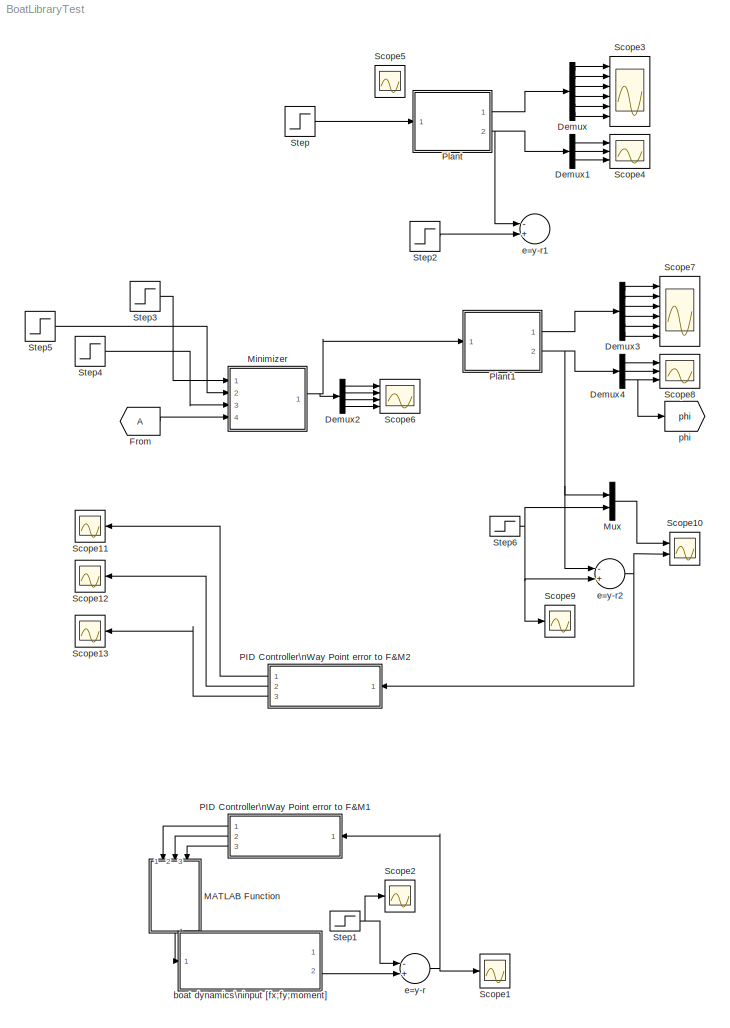
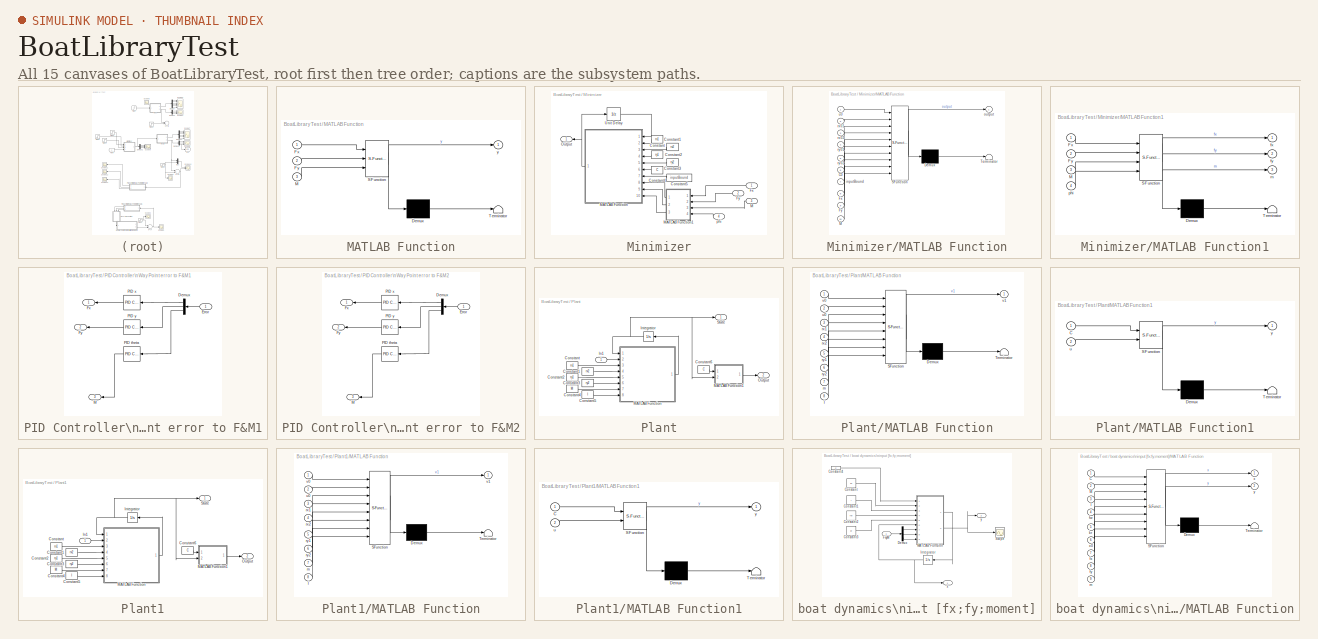
[diagram: thumbnail index - all 15 canvases of the model, root first then tree order]
MODEL BoatLibraryTest
KIND model
BLOCK [Demux] Demux
  DisplayOption = bar
  Outputs = 6
  Ports = [1, 6]
  SID = 68
BLOCK [Demux] Demux1
  DisplayOption = bar
  Outputs = 3
  Ports = [1, 3]
  SID = 69
BLOCK [Demux] Demux2
  DisplayOption = bar
  Ports = [1, 4]
  SID = 103
BLOCK [Demux] Demux3
  DisplayOption = bar
  Outputs = 6
  Ports = [1, 6]
  SID = 105
BLOCK [Demux] Demux4
  DisplayOption = bar
  Outputs = 3
  Ports = [1, 3]
  SID = 106
BLOCK [From] From
  SID = 171
BLOCK [SubSystem] MATLAB Function
  ErrorFcn = Stateflow.Translate.translate
  FunctionWithSeparateData = off
  MaskHideContents = off
  MinAlgLoopOccurrences = off
  Opaque = off
  PermitHierarchicalResolution = ExplicitOnly
  Ports = [3, 1]
  PropExecContextOutsideSubsystem = off
  RTWSystemCode = Auto
  RequestExecContextInheritance = off
  SFBlockType = MATLAB Function
  SID = 145
  TreatAsAtomicUnit = on
BLOCK [Demux] MATLAB Function/ Demux 
  Outputs = 1
  Ports = [1, 1]
  SID = 145::19
BLOCK [S-Function] MATLAB Function/ SFunction 
  EnableBusSupport = on
  FunctionName = sf_sfun
  PortCounts = [3 2]
  Ports = [3, 2]
  SID = 145::18
  Tag = Stateflow S-Function BoatLibraryTest 7
BLOCK [Terminator] MATLAB Function/ Terminator 
  SID = 145::20
BLOCK [Inport] MATLAB Function/Fx
  IconDisplay = Port number
  SID = 145::1
BLOCK [Inport] MATLAB Function/Fy
  IconDisplay = Port number
  Port = 2
  SID = 145::21
BLOCK [Inport] MATLAB Function/M
  IconDisplay = Port number
  Port = 3
  SID = 145::22
BLOCK [Outport] MATLAB Function/y
  IconDisplay = Port number
  SID = 145::5
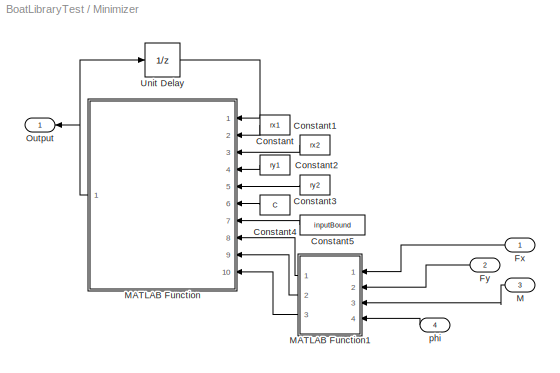
BLOCK [SubSystem] Minimizer
  FunctionWithSeparateData = off
  MaskHideContents = off
  MinAlgLoopOccurrences = off
  Opaque = off
  Ports = [4, 1]
  PropExecContextOutsideSubsystem = off
  RTWSystemCode = Auto
  RequestExecContextInheritance = off
  SID = 79
BLOCK [Constant] Minimizer/Constant
  SID = 81
  Value = rx1
BLOCK [Constant] Minimizer/Constant1
  SID = 82
  Value = rx2
BLOCK [Constant] Minimizer/Constant2
  SID = 83
  Value = ry1
BLOCK [Constant] Minimizer/Constant3
  SID = 84
  Value = ry2
BLOCK [Constant] Minimizer/Constant4
  SID = 85
  Value = C
BLOCK [Constant] Minimizer/Constant5
  SID = 128
  Value = inputBound
BLOCK [Inport] Minimizer/Fx
  IconDisplay = Port number
  SID = 80
BLOCK [Inport] Minimizer/Fy
  IconDisplay = Port number
  Port = 2
  SID = 148
BLOCK [Inport] Minimizer/M
  IconDisplay = Port number
  Port = 3
  SID = 149
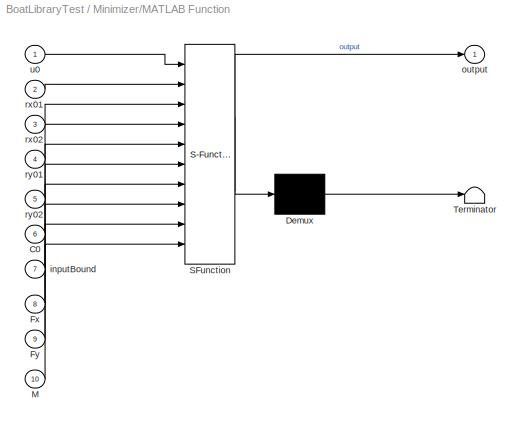
BLOCK [SubSystem] Minimizer/MATLAB Function
  ErrorFcn = Stateflow.Translate.translate
  FunctionWithSeparateData = off
  MaskHideContents = off
  MinAlgLoopOccurrences = off
  Opaque = off
  PermitHierarchicalResolution = ExplicitOnly
  Ports = [10, 1]
  PropExecContextOutsideSubsystem = off
  RTWSystemCode = Auto
  RequestExecContextInheritance = off
  SFBlockType = MATLAB Function
  SID = 86
  TreatAsAtomicUnit = on
BLOCK [Demux] Minimizer/MATLAB Function/ Demux 
  Outputs = 1
  Ports = [1, 1]
  SID = 86::125
BLOCK [S-Function] Minimizer/MATLAB Function/ SFunction 
  EnableBusSupport = on
  FunctionName = sf_sfun
  PortCounts = [10 2]
  Ports = [10, 2]
  SID = 86::124
  Tag = Stateflow S-Function BoatLibraryTest 4
BLOCK [Terminator] Minimizer/MATLAB Function/ Terminator 
  SID = 86::126
BLOCK [Inport] Minimizer/MATLAB Function/C0
  IconDisplay = Port number
  Port = 6
  SID = 86::27
BLOCK [Inport] Minimizer/MATLAB Function/Fx
  IconDisplay = Port number
  Port = 8
  SID = 86::28
BLOCK [Inport] Minimizer/MATLAB Function/Fy
  IconDisplay = Port number
  Port = 9
  SID = 86::127
BLOCK [Inport] Minimizer/MATLAB Function/M
  IconDisplay = Port number
  Port = 10
  SID = 86::128
BLOCK [Inport] Minimizer/MATLAB Function/inputBound
  IconDisplay = Port number
  Port = 7
  SID = 86::123
BLOCK [Outport] Minimizer/MATLAB Function/output
  IconDisplay = Port number
  SID = 86::5
BLOCK [Inport] Minimizer/MATLAB Function/rx01
  IconDisplay = Port number
  Port = 2
  SID = 86::23
BLOCK [Inport] Minimizer/MATLAB Function/rx02
  IconDisplay = Port number
  Port = 3
  SID = 86::24
BLOCK [Inport] Minimizer/MATLAB Function/ry01
  IconDisplay = Port number
  Port = 4
  SID = 86::25
BLOCK [Inport] Minimizer/MATLAB Function/ry02
  IconDisplay = Port number
  Port = 5
  SID = 86::26
BLOCK [Inport] Minimizer/MATLAB Function/u0
  IconDisplay = Port number
  SID = 86::1
BLOCK [SubSystem] Minimizer/MATLAB Function1
  ErrorFcn = Stateflow.Translate.translate
  FunctionWithSeparateData = off
  MaskHideContents = off
  MinAlgLoopOccurrences = off
  Opaque = off
  PermitHierarchicalResolution = ExplicitOnly
  Ports = [4, 3]
  PropExecContextOutsideSubsystem = off
  RTWSystemCode = Auto
  RequestExecContextInheritance = off
  SFBlockType = MATLAB Function
  SID = 168
  TreatAsAtomicUnit = on
BLOCK [Demux] Minimizer/MATLAB Function1/ Demux 
  Outputs = 1
  Ports = [1, 1]
  SID = 168::19
BLOCK [S-Function] Minimizer/MATLAB Function1/ SFunction 
  EnableBusSupport = on
  FunctionName = sf_sfun
  PortCounts = [4 4]
  Ports = [4, 4]
  SID = 168::18
  Tag = Stateflow S-Function BoatLibraryTest 8
BLOCK [Terminator] Minimizer/MATLAB Function1/ Terminator 
  SID = 168::20
BLOCK [Inport] Minimizer/MATLAB Function1/Fx
  IconDisplay = Port number
  SID = 168::1
BLOCK [Inport] Minimizer/MATLAB Function1/Fy
  IconDisplay = Port number
  Port = 2
  SID = 168::21
BLOCK [Inport] Minimizer/MATLAB Function1/M
  IconDisplay = Port number
  Port = 3
  SID = 168::22
BLOCK [Outport] Minimizer/MATLAB Function1/fx
  IconDisplay = Port number
  SID = 168::5
BLOCK [Outport] Minimizer/MATLAB Function1/fy
  IconDisplay = Port number
  Port = 2
  SID = 168::23
BLOCK [Outport] Minimizer/MATLAB Function1/m
  IconDisplay = Port number
  Port = 3
  SID = 168::24
BLOCK [Inport] Minimizer/MATLAB Function1/phi
  IconDisplay = Port number
  Port = 4
  SID = 168::25
BLOCK [Outport] Minimizer/Output
  IconDisplay = Port number
  SID = 88
BLOCK [UnitDelay] Minimizer/Unit Delay
  InitialCondition = [0;0;0;0]
  InputProcessing = Elements as channels (sample based)
  SID = 87
  SampleTime = -1
BLOCK [Inport] Minimizer/phi
  IconDisplay = Port number
  Port = 4
  SID = 169
BLOCK [Mux] Mux
  DisplayOption = bar
  Inputs = 2
  Ports = [2, 1]
  SID = 173
BLOCK [SubSystem] PID Controller\nWay Point error to F&M1
  FunctionWithSeparateData = off
  MaskHideContents = off
  MinAlgLoopOccurrences = off
  Opaque = off
  Ports = [1, 3]
  PropExecContextOutsideSubsystem = off
  RTWSystemCode = Auto
  RequestExecContextInheritance = off
  SID = 16
BLOCK [Demux] PID Controller\nWay Point error to F&M1/Demux
  DisplayOption = bar
  Outputs = 3
  Ports = [1, 3]
  SID = 18
BLOCK [Inport] PID Controller\nWay Point error to F&M1/Error
  IconDisplay = Port number
  SID = 17
BLOCK [Outport] PID Controller\nWay Point error to F&M1/Fx
  IconDisplay = Port number
  SID = 23
BLOCK [Outport] PID Controller\nWay Point error to F&M1/Fy
  IconDisplay = Port number
  Port = 2
  SID = 146
BLOCK [Outport] PID Controller\nWay Point error to F&M1/M
  IconDisplay = Port number
  Port = 3
  SID = 147
BLOCK [Reference] PID Controller\nWay Point error to F&M1/PID theta  REF=simulink/Continuous/PID Controller
  AntiWindupMode = none
  Controller = PID
  D = 5.47077070641916
  DOutDataTypeStr = Inherit: Inherit via internal rule
  DOutMax = []
  DOutMin = []
  DParamDataTypeStr = Inherit: Inherit via internal rule
  DParamMax = []
  DParamMin = []
  ExternalReset = none
  FilterContinuousStateAttributes = ''
  FilterMethod = Forward Euler
  FilterOutDataTypeStr = Inherit: Inherit via internal rule
  FilterOutMax = []
  FilterOutMin = []
  FilterRTWStateStorageClass = Auto
  FilterStateMustResolveToSignalObject = off
  Form = Parallel
  I = -178.448916818041
  IOutDataTypeStr = Inherit: Inherit via internal rule
  IOutMax = []
  IOutMin = []
  IParamDataTypeStr = Inherit: Inherit via internal rule
  IParamMax = []
  IParamMin = []
  IgnoreLimit = off
  InitialConditionForFilter = 0
  InitialConditionForIntegrator = 0
  InitialConditionSource = internal
  IntegratorContinuousStateAttributes = ''
  IntegratorMethod = Forward Euler
  IntegratorOutDataTypeStr = Inherit: Inherit via internal rule
  IntegratorOutMax = []
  IntegratorOutMin = []
  IntegratorRTWStateStorageClass = Auto
  IntegratorStateMustResolveToSignalObject = off
  Kb = 1
  KbOutDataTypeStr = Inherit: Inherit via internal rule
  KbOutMax = []
  KbOutMin = []
  KbParamDataTypeStr = Inherit: Inherit via internal rule
  KbParamMax = []
  KbParamMin = []
  Kt = 1
  KtOutDataTypeStr = Inherit: Inherit via internal rule
  KtOutMax = []
  KtOutMin = []
  KtParamDataTypeStr = Inherit: Inherit via internal rule
  KtParamMax = []
  KtParamMin = []
  LimitOutput = off
  LinearizeAsGain = off
  LockScale = off
  LowerSaturationLimit = -inf
  N = 9.64052643054454
  NOutDataTypeStr = Inherit: Inherit via internal rule
  NOutMax = []
  NOutMin = []
  NParamDataTypeStr = Inherit: Inherit via internal rule
  NParamMax = []
  NParamMin = []
  P = -52.7411095906827
  POutDataTypeStr = Inherit: Inherit via internal rule
  POutMax = []
  POutMin = []
  PParamDataTypeStr = Inherit: Inherit via internal rule
  PParamMax = []
  PParamMin = []
  Ports = [1, 1]
  RndMeth = Floor
  SID = 20
  SampleTime = 1
  SaturateOnIntegerOverflow = off
  SaturationOutDataTypeStr = Inherit: Same as input
  SaturationOutMax = []
  SaturationOutMin = []
  SourceBlock = simulink/Continuous/PID Controller
  SourceType = PID 1dof
  SumAccumDataTypeStr = Inherit: Inherit via internal rule
  SumDAccumDataTypeStr = Inherit: Inherit via internal rule
  SumDOutDataTypeStr = Inherit: Inherit via internal rule
  SumDOutMax = []
  SumDOutMin = []
  SumI1AccumDataTypeStr = Inherit: Inherit via internal rule
  SumI1OutDataTypeStr = Inherit: Inherit via internal rule
  SumI1OutMax = []
  SumI1OutMin = []
  SumI2AccumDataTypeStr = Inherit: Inherit via internal rule
  SumI2OutDataTypeStr = Inherit: Inherit via internal rule
  SumI2OutMax = []
  SumI2OutMin = []
  SumI3AccumDataTypeStr = Inherit: Inherit via internal rule
  SumI3OutDataTypeStr = Inherit: Inherit via internal rule
  SumI3OutMax = []
  SumI3OutMin = []
  SumOutDataTypeStr = Inherit: Inherit via internal rule
  SumOutMax = []
  SumOutMin = []
  TimeDomain = Continuous-time
  TrackingMode = off
  UpperSaturationLimit = inf
  ZeroCross = on
BLOCK [Reference] PID Controller\nWay Point error to F&M1/PID x  REF=simulink/Continuous/PID Controller
  AntiWindupMode = none
  Controller = PID
  D = 2.73538535320958
  DOutDataTypeStr = Inherit: Inherit via internal rule
  DOutMax = []
  DOutMin = []
  DParamDataTypeStr = Inherit: Inherit via internal rule
  DParamMax = []
  DParamMin = []
  ExternalReset = none
  FilterContinuousStateAttributes = ''
  FilterMethod = Forward Euler
  FilterOutDataTypeStr = Inherit: Inherit via internal rule
  FilterOutMax = []
  FilterOutMin = []
  FilterRTWStateStorageClass = Auto
  FilterStateMustResolveToSignalObject = off
  Form = Parallel
  I = -356.897833636081
  IOutDataTypeStr = Inherit: Inherit via internal rule
  IOutMax = []
  IOutMin = []
  IParamDataTypeStr = Inherit: Inherit via internal rule
  IParamMax = []
  IParamMin = []
  IgnoreLimit = off
  InitialConditionForFilter = 0
  InitialConditionForIntegrator = 0
  InitialConditionSource = internal
  IntegratorContinuousStateAttributes = ''
  IntegratorMethod = Forward Euler
  IntegratorOutDataTypeStr = Inherit: Inherit via internal rule
  IntegratorOutMax = []
  IntegratorOutMin = []
  IntegratorRTWStateStorageClass = Auto
  IntegratorStateMustResolveToSignalObject = off
  Kb = 1
  KbOutDataTypeStr = Inherit: Inherit via internal rule
  KbOutMax = []
  KbOutMin = []
  KbParamDataTypeStr = Inherit: Inherit via internal rule
  KbParamMax = []
  KbParamMin = []
  Kt = 1
  KtOutDataTypeStr = Inherit: Inherit via internal rule
  KtOutMax = []
  KtOutMin = []
  KtParamDataTypeStr = Inherit: Inherit via internal rule
  KtParamMax = []
  KtParamMin = []
  LimitOutput = off
  LinearizeAsGain = off
  LockScale = off
  LowerSaturationLimit = -inf
  N = 19.2810528610891
  NOutDataTypeStr = Inherit: Inherit via internal rule
  NOutMax = []
  NOutMin = []
  NParamDataTypeStr = Inherit: Inherit via internal rule
  NParamMax = []
  NParamMin = []
  P = -52.7411095906827
  POutDataTypeStr = Inherit: Inherit via internal rule
  POutMax = []
  POutMin = []
  PParamDataTypeStr = Inherit: Inherit via internal rule
  PParamMax = []
  PParamMin = []
  Ports = [1, 1]
  RndMeth = Floor
  SID = 21
  SampleTime = 1
  SaturateOnIntegerOverflow = off
  SaturationOutDataTypeStr = Inherit: Same as input
  SaturationOutMax = []
  SaturationOutMin = []
  SourceBlock = simulink/Continuous/PID Controller
  SourceType = PID 1dof
  SumAccumDataTypeStr = Inherit: Inherit via internal rule
  SumDAccumDataTypeStr = Inherit: Inherit via internal rule
  SumDOutDataTypeStr = Inherit: Inherit via internal rule
  SumDOutMax = []
  SumDOutMin = []
  SumI1AccumDataTypeStr = Inherit: Inherit via internal rule
  SumI1OutDataTypeStr = Inherit: Inherit via internal rule
  SumI1OutMax = []
  SumI1OutMin = []
  SumI2AccumDataTypeStr = Inherit: Inherit via internal rule
  SumI2OutDataTypeStr = Inherit: Inherit via internal rule
  SumI2OutMax = []
  SumI2OutMin = []
  SumI3AccumDataTypeStr = Inherit: Inherit via internal rule
  SumI3OutDataTypeStr = Inherit: Inherit via internal rule
  SumI3OutMax = []
  SumI3OutMin = []
  SumOutDataTypeStr = Inherit: Inherit via internal rule
  SumOutMax = []
  SumOutMin = []
  TimeDomain = Continuous-time
  TrackingMode = off
  UpperSaturationLimit = inf
  ZeroCross = on
BLOCK [Reference] PID Controller\nWay Point error to F&M1/PID y  REF=simulink/Continuous/PID Controller
  AntiWindupMode = none
  Controller = PID
  D = 2.73538535320958
  DOutDataTypeStr = Inherit: Inherit via internal rule
  DOutMax = []
  DOutMin = []
  DParamDataTypeStr = Inherit: Inherit via internal rule
  DParamMax = []
  DParamMin = []
  ExternalReset = none
  FilterContinuousStateAttributes = ''
  FilterMethod = Forward Euler
  FilterOutDataTypeStr = Inherit: Inherit via internal rule
  FilterOutMax = []
  FilterOutMin = []
  FilterRTWStateStorageClass = Auto
  FilterStateMustResolveToSignalObject = off
  Form = Parallel
  I = -356.897833636081
  IOutDataTypeStr = Inherit: Inherit via internal rule
  IOutMax = []
  IOutMin = []
  IParamDataTypeStr = Inherit: Inherit via internal rule
  IParamMax = []
  IParamMin = []
  IgnoreLimit = off
  InitialConditionForFilter = 0
  InitialConditionForIntegrator = 0
  InitialConditionSource = internal
  IntegratorContinuousStateAttributes = ''
  IntegratorMethod = Forward Euler
  IntegratorOutDataTypeStr = Inherit: Inherit via internal rule
  IntegratorOutMax = []
  IntegratorOutMin = []
  IntegratorRTWStateStorageClass = Auto
  IntegratorStateMustResolveToSignalObject = off
  Kb = 1
  KbOutDataTypeStr = Inherit: Inherit via internal rule
  KbOutMax = []
  KbOutMin = []
  KbParamDataTypeStr = Inherit: Inherit via internal rule
  KbParamMax = []
  KbParamMin = []
  Kt = 1
  KtOutDataTypeStr = Inherit: Inherit via internal rule
  KtOutMax = []
  KtOutMin = []
  KtParamDataTypeStr = Inherit: Inherit via internal rule
  KtParamMax = []
  KtParamMin = []
  LimitOutput = off
  LinearizeAsGain = off
  LockScale = off
  LowerSaturationLimit = -inf
  N = 19.2810528610891
  NOutDataTypeStr = Inherit: Inherit via internal rule
  NOutMax = []
  NOutMin = []
  NParamDataTypeStr = Inherit: Inherit via internal rule
  NParamMax = []
  NParamMin = []
  P = -52.7411095906827
  POutDataTypeStr = Inherit: Inherit via internal rule
  POutMax = []
  POutMin = []
  PParamDataTypeStr = Inherit: Inherit via internal rule
  PParamMax = []
  PParamMin = []
  Ports = [1, 1]
  RndMeth = Floor
  SID = 22
  SampleTime = 1
  SaturateOnIntegerOverflow = off
  SaturationOutDataTypeStr = Inherit: Same as input
  SaturationOutMax = []
  SaturationOutMin = []
  SourceBlock = simulink/Continuous/PID Controller
  SourceType = PID 1dof
  SumAccumDataTypeStr = Inherit: Inherit via internal rule
  SumDAccumDataTypeStr = Inherit: Inherit via internal rule
  SumDOutDataTypeStr = Inherit: Inherit via internal rule
  SumDOutMax = []
  SumDOutMin = []
  SumI1AccumDataTypeStr = Inherit: Inherit via internal rule
  SumI1OutDataTypeStr = Inherit: Inherit via internal rule
  SumI1OutMax = []
  SumI1OutMin = []
  SumI2AccumDataTypeStr = Inherit: Inherit via internal rule
  SumI2OutDataTypeStr = Inherit: Inherit via internal rule
  SumI2OutMax = []
  SumI2OutMin = []
  SumI3AccumDataTypeStr = Inherit: Inherit via internal rule
  SumI3OutDataTypeStr = Inherit: Inherit via internal rule
  SumI3OutMax = []
  SumI3OutMin = []
  SumOutDataTypeStr = Inherit: Inherit via internal rule
  SumOutMax = []
  SumOutMin = []
  TimeDomain = Continuous-time
  TrackingMode = off
  UpperSaturationLimit = inf
  ZeroCross = on
BLOCK [SubSystem] PID Controller\nWay Point error to F&M2
  FunctionWithSeparateData = off
  MaskHideContents = off
  MinAlgLoopOccurrences = off
  Opaque = off
  Ports = [1, 3]
  PropExecContextOutsideSubsystem = off
  RTWSystemCode = Auto
  RequestExecContextInheritance = off
  SID = 155
BLOCK [Demux] PID Controller\nWay Point error to F&M2/Demux
  DisplayOption = bar
  Outputs = 3
  Ports = [1, 3]
  SID = 157
BLOCK [Inport] PID Controller\nWay Point error to F&M2/Error
  IconDisplay = Port number
  SID = 156
BLOCK [Outport] PID Controller\nWay Point error to F&M2/Fx
  IconDisplay = Port number
  SID = 161
BLOCK [Outport] PID Controller\nWay Point error to F&M2/Fy
  IconDisplay = Port number
  Port = 2
  SID = 162
BLOCK [Outport] PID Controller\nWay Point error to F&M2/M
  IconDisplay = Port number
  Port = 3
  SID = 163
BLOCK [Reference] PID Controller\nWay Point error to F&M2/PID theta  REF=simulink/Continuous/PID Controller
  AntiWindupMode = none
  Controller = PID
  D = -5
  DOutDataTypeStr = Inherit: Inherit via internal rule
  DOutMax = []
  DOutMin = []
  DParamDataTypeStr = Inherit: Inherit via internal rule
  DParamMax = []
  DParamMin = []
  ExternalReset = none
  FilterContinuousStateAttributes = ''
  FilterMethod = Forward Euler
  FilterOutDataTypeStr = Inherit: Inherit via internal rule
  FilterOutMax = []
  FilterOutMin = []
  FilterRTWStateStorageClass = Auto
  FilterStateMustResolveToSignalObject = off
  Form = Parallel
  I = 178.448916818041
  IOutDataTypeStr = Inherit: Inherit via internal rule
  IOutMax = []
  IOutMin = []
  IParamDataTypeStr = Inherit: Inherit via internal rule
  IParamMax = []
  IParamMin = []
  IgnoreLimit = off
  InitialConditionForFilter = 0
  InitialConditionForIntegrator = 0
  InitialConditionSource = internal
  IntegratorContinuousStateAttributes = ''
  IntegratorMethod = Forward Euler
  IntegratorOutDataTypeStr = Inherit: Inherit via internal rule
  IntegratorOutMax = []
  IntegratorOutMin = []
  IntegratorRTWStateStorageClass = Auto
  IntegratorStateMustResolveToSignalObject = off
  Kb = 1
  KbOutDataTypeStr = Inherit: Inherit via internal rule
  KbOutMax = []
  KbOutMin = []
  KbParamDataTypeStr = Inherit: Inherit via internal rule
  KbParamMax = []
  KbParamMin = []
  Kt = 1
  KtOutDataTypeStr = Inherit: Inherit via internal rule
  KtOutMax = []
  KtOutMin = []
  KtParamDataTypeStr = Inherit: Inherit via internal rule
  KtParamMax = []
  KtParamMin = []
  LimitOutput = off
  LinearizeAsGain = off
  LockScale = off
  LowerSaturationLimit = -inf
  N = 9.64052643054454
  NOutDataTypeStr = Inherit: Inherit via internal rule
  NOutMax = []
  NOutMin = []
  NParamDataTypeStr = Inherit: Inherit via internal rule
  NParamMax = []
  NParamMin = []
  P = 52.7411095906827
  POutDataTypeStr = Inherit: Inherit via internal rule
  POutMax = []
  POutMin = []
  PParamDataTypeStr = Inherit: Inherit via internal rule
  PParamMax = []
  PParamMin = []
  Ports = [1, 1]
  RndMeth = Floor
  SID = 158
  SampleTime = 1
  SaturateOnIntegerOverflow = off
  SaturationOutDataTypeStr = Inherit: Same as input
  SaturationOutMax = []
  SaturationOutMin = []
  SourceBlock = simulink/Continuous/PID Controller
  SourceType = PID 1dof
  SumAccumDataTypeStr = Inherit: Inherit via internal rule
  SumDAccumDataTypeStr = Inherit: Inherit via internal rule
  SumDOutDataTypeStr = Inherit: Inherit via internal rule
  SumDOutMax = []
  SumDOutMin = []
  SumI1AccumDataTypeStr = Inherit: Inherit via internal rule
  SumI1OutDataTypeStr = Inherit: Inherit via internal rule
  SumI1OutMax = []
  SumI1OutMin = []
  SumI2AccumDataTypeStr = Inherit: Inherit via internal rule
  SumI2OutDataTypeStr = Inherit: Inherit via internal rule
  SumI2OutMax = []
  SumI2OutMin = []
  SumI3AccumDataTypeStr = Inherit: Inherit via internal rule
  SumI3OutDataTypeStr = Inherit: Inherit via internal rule
  SumI3OutMax = []
  SumI3OutMin = []
  SumOutDataTypeStr = Inherit: Inherit via internal rule
  SumOutMax = []
  SumOutMin = []
  TimeDomain = Continuous-time
  TrackingMode = off
  UpperSaturationLimit = inf
  ZeroCross = on
BLOCK [Reference] PID Controller\nWay Point error to F&M2/PID x  REF=simulink/Continuous/PID Controller
  AntiWindupMode = none
  Controller = PID
  D = -5
  DOutDataTypeStr = Inherit: Inherit via internal rule
  DOutMax = []
  DOutMin = []
  DParamDataTypeStr = Inherit: Inherit via internal rule
  DParamMax = []
  DParamMin = []
  ExternalReset = none
  FilterContinuousStateAttributes = ''
  FilterMethod = Forward Euler
  FilterOutDataTypeStr = Inherit: Inherit via internal rule
  FilterOutMax = []
  FilterOutMin = []
  FilterRTWStateStorageClass = Auto
  FilterStateMustResolveToSignalObject = off
  Form = Parallel
  I = 356.897833636081
  IOutDataTypeStr = Inherit: Inherit via internal rule
  IOutMax = []
  IOutMin = []
  IParamDataTypeStr = Inherit: Inherit via internal rule
  IParamMax = []
  IParamMin = []
  IgnoreLimit = off
  InitialConditionForFilter = 0
  InitialConditionForIntegrator = 0
  InitialConditionSource = internal
  IntegratorContinuousStateAttributes = ''
  IntegratorMethod = Forward Euler
  IntegratorOutDataTypeStr = Inherit: Inherit via internal rule
  IntegratorOutMax = []
  IntegratorOutMin = []
  IntegratorRTWStateStorageClass = Auto
  IntegratorStateMustResolveToSignalObject = off
  Kb = 1
  KbOutDataTypeStr = Inherit: Inherit via internal rule
  KbOutMax = []
  KbOutMin = []
  KbParamDataTypeStr = Inherit: Inherit via internal rule
  KbParamMax = []
  KbParamMin = []
  Kt = 1
  KtOutDataTypeStr = Inherit: Inherit via internal rule
  KtOutMax = []
  KtOutMin = []
  KtParamDataTypeStr = Inherit: Inherit via internal rule
  KtParamMax = []
  KtParamMin = []
  LimitOutput = off
  LinearizeAsGain = off
  LockScale = off
  LowerSaturationLimit = -inf
  N = 19.2810528610891
  NOutDataTypeStr = Inherit: Inherit via internal rule
  NOutMax = []
  NOutMin = []
  NParamDataTypeStr = Inherit: Inherit via internal rule
  NParamMax = []
  NParamMin = []
  P = 52.7411095906827
  POutDataTypeStr = Inherit: Inherit via internal rule
  POutMax = []
  POutMin = []
  PParamDataTypeStr = Inherit: Inherit via internal rule
  PParamMax = []
  PParamMin = []
  Ports = [1, 1]
  RndMeth = Floor
  SID = 159
  SampleTime = 1
  SaturateOnIntegerOverflow = off
  SaturationOutDataTypeStr = Inherit: Same as input
  SaturationOutMax = []
  SaturationOutMin = []
  SourceBlock = simulink/Continuous/PID Controller
  SourceType = PID 1dof
  SumAccumDataTypeStr = Inherit: Inherit via internal rule
  SumDAccumDataTypeStr = Inherit: Inherit via internal rule
  SumDOutDataTypeStr = Inherit: Inherit via internal rule
  SumDOutMax = []
  SumDOutMin = []
  SumI1AccumDataTypeStr = Inherit: Inherit via internal rule
  SumI1OutDataTypeStr = Inherit: Inherit via internal rule
  SumI1OutMax = []
  SumI1OutMin = []
  SumI2AccumDataTypeStr = Inherit: Inherit via internal rule
  SumI2OutDataTypeStr = Inherit: Inherit via internal rule
  SumI2OutMax = []
  SumI2OutMin = []
  SumI3AccumDataTypeStr = Inherit: Inherit via internal rule
  SumI3OutDataTypeStr = Inherit: Inherit via internal rule
  SumI3OutMax = []
  SumI3OutMin = []
  SumOutDataTypeStr = Inherit: Inherit via internal rule
  SumOutMax = []
  SumOutMin = []
  TimeDomain = Continuous-time
  TrackingMode = off
  UpperSaturationLimit = inf
  ZeroCross = on
BLOCK [Reference] PID Controller\nWay Point error to F&M2/PID y  REF=simulink/Continuous/PID Controller
  AntiWindupMode = none
  Controller = PID
  D = -5
  DOutDataTypeStr = Inherit: Inherit via internal rule
  DOutMax = []
  DOutMin = []
  DParamDataTypeStr = Inherit: Inherit via internal rule
  DParamMax = []
  DParamMin = []
  ExternalReset = none
  FilterContinuousStateAttributes = ''
  FilterMethod = Forward Euler
  FilterOutDataTypeStr = Inherit: Inherit via internal rule
  FilterOutMax = []
  FilterOutMin = []
  FilterRTWStateStorageClass = Auto
  FilterStateMustResolveToSignalObject = off
  Form = Parallel
  I = 356.897833636081
  IOutDataTypeStr = Inherit: Inherit via internal rule
  IOutMax = []
  IOutMin = []
  IParamDataTypeStr = Inherit: Inherit via internal rule
  IParamMax = []
  IParamMin = []
  IgnoreLimit = off
  InitialConditionForFilter = 0
  InitialConditionForIntegrator = 0
  InitialConditionSource = internal
  IntegratorContinuousStateAttributes = ''
  IntegratorMethod = Forward Euler
  IntegratorOutDataTypeStr = Inherit: Inherit via internal rule
  IntegratorOutMax = []
  IntegratorOutMin = []
  IntegratorRTWStateStorageClass = Auto
  IntegratorStateMustResolveToSignalObject = off
  Kb = 1
  KbOutDataTypeStr = Inherit: Inherit via internal rule
  KbOutMax = []
  KbOutMin = []
  KbParamDataTypeStr = Inherit: Inherit via internal rule
  KbParamMax = []
  KbParamMin = []
  Kt = 1
  KtOutDataTypeStr = Inherit: Inherit via internal rule
  KtOutMax = []
  KtOutMin = []
  KtParamDataTypeStr = Inherit: Inherit via internal rule
  KtParamMax = []
  KtParamMin = []
  LimitOutput = off
  LinearizeAsGain = off
  LockScale = off
  LowerSaturationLimit = -inf
  N = 19.2810528610891
  NOutDataTypeStr = Inherit: Inherit via internal rule
  NOutMax = []
  NOutMin = []
  NParamDataTypeStr = Inherit: Inherit via internal rule
  NParamMax = []
  NParamMin = []
  P = 52.7411095906827
  POutDataTypeStr = Inherit: Inherit via internal rule
  POutMax = []
  POutMin = []
  PParamDataTypeStr = Inherit: Inherit via internal rule
  PParamMax = []
  PParamMin = []
  Ports = [1, 1]
  RndMeth = Floor
  SID = 160
  SampleTime = 1
  SaturateOnIntegerOverflow = off
  SaturationOutDataTypeStr = Inherit: Same as input
  SaturationOutMax = []
  SaturationOutMin = []
  SourceBlock = simulink/Continuous/PID Controller
  SourceType = PID 1dof
  SumAccumDataTypeStr = Inherit: Inherit via internal rule
  SumDAccumDataTypeStr = Inherit: Inherit via internal rule
  SumDOutDataTypeStr = Inherit: Inherit via internal rule
  SumDOutMax = []
  SumDOutMin = []
  SumI1AccumDataTypeStr = Inherit: Inherit via internal rule
  SumI1OutDataTypeStr = Inherit: Inherit via internal rule
  SumI1OutMax = []
  SumI1OutMin = []
  SumI2AccumDataTypeStr = Inherit: Inherit via internal rule
  SumI2OutDataTypeStr = Inherit: Inherit via internal rule
  SumI2OutMax = []
  SumI2OutMin = []
  SumI3AccumDataTypeStr = Inherit: Inherit via internal rule
  SumI3OutDataTypeStr = Inherit: Inherit via internal rule
  SumI3OutMax = []
  SumI3OutMin = []
  SumOutDataTypeStr = Inherit: Inherit via internal rule
  SumOutMax = []
  SumOutMin = []
  TimeDomain = Continuous-time
  TrackingMode = off
  UpperSaturationLimit = inf
  ZeroCross = on
BLOCK [SubSystem] Plant
  FunctionWithSeparateData = off
  MaskHideContents = off
  MinAlgLoopOccurrences = off
  Opaque = off
  Ports = [1, 2]
  PropExecContextOutsideSubsystem = off
  RTWSystemCode = Auto
  RequestExecContextInheritance = off
  SID = 1
BLOCK [Constant] Plant/Constant
  SID = 3
  Value = rx1
BLOCK [Constant] Plant/Constant1
  SID = 4
  Value = rx2
BLOCK [Constant] Plant/Constant2
  SID = 5
  Value = ry1
BLOCK [Constant] Plant/Constant3
  SID = 6
  Value = ry2
BLOCK [Constant] Plant/Constant4
  SID = 7
  Value = M
BLOCK [Constant] Plant/Constant5
  SID = 8
  Value = I
BLOCK [Constant] Plant/Constant6
  SID = 15
  Value = C
BLOCK [Inport] Plant/In1
  IconDisplay = Port number
  SID = 2
BLOCK [Integrator] Plant/Integrator
  InitialCondition = [0 0 0 0 0 0]
  Ports = [1, 1]
  SID = 9
BLOCK [SubSystem] Plant/MATLAB Function
  ErrorFcn = Stateflow.Translate.translate
  FunctionWithSeparateData = off
  MaskHideContents = off
  MinAlgLoopOccurrences = off
  Opaque = off
  PermitHierarchicalResolution = ExplicitOnly
  Ports = [8, 1]
  PropExecContextOutsideSubsystem = off
  RTWSystemCode = Auto
  RequestExecContextInheritance = off
  SFBlockType = MATLAB Function
  SID = 10
  TreatAsAtomicUnit = on
BLOCK [Demux] Plant/MATLAB Function/ Demux 
  Outputs = 1
  Ports = [1, 1]
  SID = 10::37
BLOCK [S-Function] Plant/MATLAB Function/ SFunction 
  EnableBusSupport = on
  FunctionName = sf_sfun
  PortCounts = [8 2]
  Ports = [8, 2]
  SID = 10::36
  Tag = Stateflow S-Function BoatLibraryTest 1
BLOCK [Terminator] Plant/MATLAB Function/ Terminator 
  SID = 10::38
BLOCK [Inport] Plant/MATLAB Function/I
  IconDisplay = Port number
  Port = 8
  SID = 10::30
BLOCK [Inport] Plant/MATLAB Function/m
  IconDisplay = Port number
  Port = 7
  SID = 10::29
BLOCK [Inport] Plant/MATLAB Function/rx1
  IconDisplay = Port number
  Port = 3
  SID = 10::25
BLOCK [Inport] Plant/MATLAB Function/rx2
  IconDisplay = Port number
  Port = 4
  SID = 10::26
BLOCK [Inport] Plant/MATLAB Function/ry1
  IconDisplay = Port number
  Port = 5
  SID = 10::27
BLOCK [Inport] Plant/MATLAB Function/ry2
  IconDisplay = Port number
  Port = 6
  SID = 10::28
BLOCK [Inport] Plant/MATLAB Function/u0
  IconDisplay = Port number
  Port = 2
  SID = 10::24
BLOCK [Inport] Plant/MATLAB Function/v0
  IconDisplay = Port number
  SID = 10::1
BLOCK [Outport] Plant/MATLAB Function/v1
  IconDisplay = Port number
  SID = 10::5
BLOCK [SubSystem] Plant/MATLAB Function1
  ErrorFcn = Stateflow.Translate.translate
  FunctionWithSeparateData = off
  MaskHideContents = off
  MinAlgLoopOccurrences = off
  Opaque = off
  PermitHierarchicalResolution = ExplicitOnly
  Ports = [2, 1]
  PropExecContextOutsideSubsystem = off
  RTWSystemCode = Auto
  RequestExecContextInheritance = off
  SFBlockType = MATLAB Function
  SID = 75
  TreatAsAtomicUnit = on
BLOCK [Demux] Plant/MATLAB Function1/ Demux 
  Outputs = 1
  Ports = [1, 1]
  SID = 75::25
BLOCK [S-Function] Plant/MATLAB Function1/ SFunction 
  EnableBusSupport = on
  FunctionName = sf_sfun
  PortCounts = [2 2]
  Ports = [2, 2]
  SID = 75::24
  Tag = Stateflow S-Function BoatLibraryTest 3
BLOCK [Terminator] Plant/MATLAB Function1/ Terminator 
  SID = 75::26
BLOCK [Inport] Plant/MATLAB Function1/C
  IconDisplay = Port number
  SID = 75::23
BLOCK [Inport] Plant/MATLAB Function1/u
  IconDisplay = Port number
  Port = 2
  SID = 75::1
BLOCK [Outport] Plant/MATLAB Function1/y
  IconDisplay = Port number
  SID = 75::5
BLOCK [Outport] Plant/Output
  IconDisplay = Port number
  Port = 2
  SID = 12
BLOCK [Outport] Plant/State
  IconDisplay = Port number
  SID = 11
BLOCK [SubSystem] Plant1
  FunctionWithSeparateData = off
  MaskHideContents = off
  MinAlgLoopOccurrences = off
  Opaque = off
  Ports = [1, 2]
  PropExecContextOutsideSubsystem = off
  RTWSystemCode = Auto
  RequestExecContextInheritance = off
  SID = 107
BLOCK [Constant] Plant1/Constant
  SID = 109
  Value = rx1
BLOCK [Constant] Plant1/Constant1
  SID = 110
  Value = rx2
BLOCK [Constant] Plant1/Constant2
  SID = 111
  Value = ry1
BLOCK [Constant] Plant1/Constant3
  SID = 112
  Value = ry2
BLOCK [Constant] Plant1/Constant4
  SID = 113
  Value = M
BLOCK [Constant] Plant1/Constant5
  SID = 114
  Value = I
BLOCK [Constant] Plant1/Constant6
  SID = 115
  Value = C
BLOCK [Inport] Plant1/In1
  IconDisplay = Port number
  SID = 108
BLOCK [Integrator] Plant1/Integrator
  InitialCondition = [0 0 0 0 0 0]
  Ports = [1, 1]
  SID = 116
BLOCK [SubSystem] Plant1/MATLAB Function
  ErrorFcn = Stateflow.Translate.translate
  FunctionWithSeparateData = off
  MaskHideContents = off
  MinAlgLoopOccurrences = off
  Opaque = off
  PermitHierarchicalResolution = ExplicitOnly
  Ports = [8, 1]
  PropExecContextOutsideSubsystem = off
  RTWSystemCode = Auto
  RequestExecContextInheritance = off
  SFBlockType = MATLAB Function
  SID = 117
  TreatAsAtomicUnit = on
BLOCK [Demux] Plant1/MATLAB Function/ Demux 
  Outputs = 1
  Ports = [1, 1]
  SID = 117::37
BLOCK [S-Function] Plant1/MATLAB Function/ SFunction 
  EnableBusSupport = on
  FunctionName = sf_sfun
  PortCounts = [8 2]
  Ports = [8, 2]
  SID = 117::36
  Tag = Stateflow S-Function BoatLibraryTest 5
BLOCK [Terminator] Plant1/MATLAB Function/ Terminator 
  SID = 117::38
BLOCK [Inport] Plant1/MATLAB Function/I
  IconDisplay = Port number
  Port = 8
  SID = 117::30
BLOCK [Inport] Plant1/MATLAB Function/m
  IconDisplay = Port number
  Port = 7
  SID = 117::29
BLOCK [Inport] Plant1/MATLAB Function/rx1
  IconDisplay = Port number
  Port = 3
  SID = 117::25
BLOCK [Inport] Plant1/MATLAB Function/rx2
  IconDisplay = Port number
  Port = 4
  SID = 117::26
BLOCK [Inport] Plant1/MATLAB Function/ry1
  IconDisplay = Port number
  Port = 5
  SID = 117::27
BLOCK [Inport] Plant1/MATLAB Function/ry2
  IconDisplay = Port number
  Port = 6
  SID = 117::28
BLOCK [Inport] Plant1/MATLAB Function/u0
  IconDisplay = Port number
  Port = 2
  SID = 117::24
BLOCK [Inport] Plant1/MATLAB Function/v0
  IconDisplay = Port number
  SID = 117::1
BLOCK [Outport] Plant1/MATLAB Function/v1
  IconDisplay = Port number
  SID = 117::5
BLOCK [SubSystem] Plant1/MATLAB Function1
  ErrorFcn = Stateflow.Translate.translate
  FunctionWithSeparateData = off
  MaskHideContents = off
  MinAlgLoopOccurrences = off
  Opaque = off
  PermitHierarchicalResolution = ExplicitOnly
  Ports = [2, 1]
  PropExecContextOutsideSubsystem = off
  RTWSystemCode = Auto
  RequestExecContextInheritance = off
  SFBlockType = MATLAB Function
  SID = 118
  TreatAsAtomicUnit = on
BLOCK [Demux] Plant1/MATLAB Function1/ Demux 
  Outputs = 1
  Ports = [1, 1]
  SID = 118::25
BLOCK [S-Function] Plant1/MATLAB Function1/ SFunction 
  EnableBusSupport = on
  FunctionName = sf_sfun
  PortCounts = [2 2]
  Ports = [2, 2]
  SID = 118::24
  Tag = Stateflow S-Function BoatLibraryTest 6
BLOCK [Terminator] Plant1/MATLAB Function1/ Terminator 
  SID = 118::26
BLOCK [Inport] Plant1/MATLAB Function1/C
  IconDisplay = Port number
  SID = 118::23
BLOCK [Inport] Plant1/MATLAB Function1/u
  IconDisplay = Port number
  Port = 2
  SID = 118::1
BLOCK [Outport] Plant1/MATLAB Function1/y
  IconDisplay = Port number
  SID = 118::5
BLOCK [Outport] Plant1/Output
  IconDisplay = Port number
  Port = 2
  SID = 120
BLOCK [Outport] Plant1/State
  IconDisplay = Port number
  SID = 119
BLOCK [Scope] Scope1
  DataFormat = StructureWithTime
  Floating = off
  LimitDataPoints = off
  NumInputPorts = 1
  Ports = [1]
  SID = 55
  SampleTime = 0
  SaveName = ScopeData2
  ShowLegends = off
  YMax = 1
  YMin = -1
  ZoomMode = yonly
BLOCK [Scope] Scope10
  DataFormat = StructureWithTime
  Floating = off
  LimitDataPoints = off
  NumInputPorts = 2
  Ports = [2]
  SID = 164
  SampleTime = 0
  SaveName = ScopeData9
  ShowLegends = off
  YMax = 0.8~5
  YMin = -0.05~-5
  ZoomMode = yonly
BLOCK [Scope] Scope11
  DataFormat = StructureWithTime
  Floating = off
  NumInputPorts = 1
  Ports = [1]
  SID = 165
  SampleTime = 0
  SaveName = ScopeData10
  ShowLegends = off
  YMax = 260
  YMin = 50
  ZoomMode = xonly
BLOCK [Scope] Scope12
  DataFormat = StructureWithTime
  Floating = off
  NumInputPorts = 1
  Ports = [1]
  SID = 166
  SampleTime = 0
  SaveName = ScopeData11
  ShowLegends = off
  YMax = -3.9e+06
  YMin = -5.4e+06
  ZoomMode = yonly
BLOCK [Scope] Scope13
  DataFormat = StructureWithTime
  Floating = off
  NumInputPorts = 1
  Ports = [1]
  SID = 167
  SampleTime = 0
  SaveName = ScopeData12
  ShowLegends = off
  YMax = 13000
  YMin = -1000
  ZoomMode = yonly
BLOCK [Scope] Scope2
  DataFormat = StructureWithTime
  Floating = off
  NumInputPorts = 1
  Ports = [1]
  SID = 38
  SampleTime = 0
  SaveName = ScopeData1
  ShowLegends = off
  ZoomMode = yonly
BLOCK [Scope] Scope3
  DataFormat = StructureWithTime
  Floating = off
  LimitDataPoints = off
  NumInputPorts = 6
  Ports = [6]
  SID = 13
  SampleTime = 0
  ShowLegends = off
  YMax = 250000~4.5~5~5~5~5
  YMin = -250000~-4.5~-5~-5~-5~-5
  ZoomMode = yonly
BLOCK [Scope] Scope4
  DataFormat = StructureWithTime
  Floating = off
  LimitDataPoints = off
  NumInputPorts = 3
  Ports = [3]
  SID = 70
  SampleTime = 0
  SaveName = ScopeData3
  ShowLegends = off
  YMax = 250000~4.5~5
  YMin = -250000~-4.5~-5
  ZoomMode = yonly
BLOCK [Scope] Scope5
  DataFormat = StructureWithTime
  Floating = off
  NumInputPorts = 1
  Ports = [1]
  SID = 56
  SampleTime = 0
  SaveName = ScopeData4
  ShowLegends = off
  YMax = 9.5e+15
  YMin = 0
  ZoomMode = yonly
BLOCK [Scope] Scope6
  DataFormat = StructureWithTime
  Floating = off
  LimitDataPoints = off
  NumInputPorts = 4
  Ports = [4]
  SID = 104
  SampleTime = 0
  SaveName = ScopeData5
  ShowLegends = off
  YMax = -4.75~-66.5~5.25~-66.5
  YMin = -5.25~-73.5~4.75~-73.5
BLOCK [Scope] Scope7
  DataFormat = StructureWithTime
  Floating = off
  LimitDataPoints = off
  NumInputPorts = 6
  Ports = [6]
  SID = 121
  SampleTime = 0
  SaveName = ScopeData6
  ShowLegends = off
  YMax = 250000~4.5~5~5~5~5
  YMin = -250000~-4.5~-5~-5~-5~-5
  ZoomMode = yonly
BLOCK [Scope] Scope8
  DataFormat = StructureWithTime
  Floating = off
  LimitDataPoints = off
  NumInputPorts = 3
  Ports = [3]
  SID = 122
  SampleTime = 0
  SaveName = ScopeData7
  ShowLegends = off
  YMax = 0.0225~0.15~0.015
  YMin = -0.0075~-3.46945e-18~-0.05
  ZoomMode = yonly
BLOCK [Scope] Scope9
  DataFormat = StructureWithTime
  Floating = off
  NumInputPorts = 1
  Ports = [1]
  SID = 152
  SampleTime = 0
  SaveName = ScopeData8
  ShowLegends = off
  ZoomMode = yonly
BLOCK [Step] Step
  After = [0;200;90;200]
  Before = [0;0;0;0]
  SID = 14
  SampleTime = 0
BLOCK [Step] Step1
  After = [5;2;45]
  Before = [0;0;0]
  SID = 39
  SampleTime = 0
BLOCK [Step] Step2
  After = [0;200;90]
  Before = [0;0;0]
  SID = 76
  SampleTime = 0
BLOCK [Step] Step3
  After = 0
  SID = 102
  SampleTime = 0
BLOCK [Step] Step4
  After = 0
  SID = 150
  SampleTime = 0
BLOCK [Step] Step5
  SID = 151
  SampleTime = 0
BLOCK [Step] Step6
  After = [0;1;0]
  Before = [0;0;0]
  SID = 153
  SampleTime = 0
BLOCK [SubSystem] boat dynamics\ninput [fx;fy;moment]
  FunctionWithSeparateData = off
  MaskHideContents = off
  MinAlgLoopOccurrences = off
  Opaque = off
  Ports = [1, 2]
  PropExecContextOutsideSubsystem = off
  RTWSystemCode = Auto
  RequestExecContextInheritance = off
  SID = 24
BLOCK [Constant] boat dynamics\ninput [fx;fy;moment]/Constant
  SID = 28
  Value = M
BLOCK [Constant] boat dynamics\ninput [fx;fy;moment]/Constant1
  SID = 29
  Value = I
BLOCK [Constant] boat dynamics\ninput [fx;fy;moment]/Constant2
  SID = 30
  Value = fw
BLOCK [Constant] boat dynamics\ninput [fx;fy;moment]/Constant3
  SID = 31
  Value = kr
BLOCK [Constant] boat dynamics\ninput [fx;fy;moment]/Constant4
  SID = 32
  Value = C
BLOCK [Demux] boat dynamics\ninput [fx;fy;moment]/Demux
  DisplayOption = bar
  Outputs = 3
  Ports = [1, 3]
  SID = 41
BLOCK [Inport] boat dynamics\ninput [fx;fy;moment]/FxyM
  IconDisplay = Port number
  SID = 25
BLOCK [Integrator] boat dynamics\ninput [fx;fy;moment]/Integrator
  InitialCondition = [0 0 0 0 0 0]
  Ports = [1, 1]
  SID = 33
BLOCK [SubSystem] boat dynamics\ninput [fx;fy;moment]/MATLAB Function
  ErrorFcn = Stateflow.Translate.translate
  FunctionWithSeparateData = off
  MaskHideContents = off
  MinAlgLoopOccurrences = off
  Opaque = off
  PermitHierarchicalResolution = ExplicitOnly
  Ports = [9, 2]
  PropExecContextOutsideSubsystem = off
  RTWSystemCode = Auto
  RequestExecContextInheritance = off
  SFBlockType = MATLAB Function
  SID = 34
  TreatAsAtomicUnit = on
BLOCK [Demux] boat dynamics\ninput [fx;fy;moment]/MATLAB Function/ Demux 
  Outputs = 1
  Ports = [1, 1]
  SID = 34::35
BLOCK [S-Function] boat dynamics\ninput [fx;fy;moment]/MATLAB Function/ SFunction 
  EnableBusSupport = on
  FunctionName = sf_sfun
  PortCounts = [9 3]
  Ports = [9, 3]
  SID = 34::34
  Tag = Stateflow S-Function BoatLibraryTest 2
BLOCK [Terminator] boat dynamics\ninput [fx;fy;moment]/MATLAB Function/ Terminator 
  SID = 34::36
BLOCK [Inport] boat dynamics\ninput [fx;fy;moment]/MATLAB Function/C
  IconDisplay = Port number
  SID = 34::24
BLOCK [Inport] boat dynamics\ninput [fx;fy;moment]/MATLAB Function/I
  IconDisplay = Port number
  Port = 3
  SID = 34::20
BLOCK [Inport] boat dynamics\ninput [fx;fy;moment]/MATLAB Function/M
  IconDisplay = Port number
  Port = 2
  SID = 34::19
BLOCK [Inport] boat dynamics\ninput [fx;fy;moment]/MATLAB Function/fw
  IconDisplay = Port number
  Port = 4
  SID = 34::21
BLOCK [Inport] boat dynamics\ninput [fx;fy;moment]/MATLAB Function/fx
  IconDisplay = Port number
  Port = 7
  SID = 34::1
BLOCK [Inport] boat dynamics\ninput [fx;fy;moment]/MATLAB Function/fy
  IconDisplay = Port number
  Port = 8
  SID = 34::25
BLOCK [Inport] boat dynamics\ninput [fx;fy;moment]/MATLAB Function/kr
  IconDisplay = Port number
  Port = 5
  SID = 34::22
BLOCK [Inport] boat dynamics\ninput [fx;fy;moment]/MATLAB Function/m
  IconDisplay = Port number
  Port = 9
  SID = 34::26
BLOCK [Outport] boat dynamics\ninput [fx;fy;moment]/MATLAB Function/x
  IconDisplay = Port number
  SID = 34::23
BLOCK [Inport] boat dynamics\ninput [fx;fy;moment]/MATLAB Function/x0
  IconDisplay = Port number
  Port = 6
  SID = 34::18
BLOCK [Outport] boat dynamics\ninput [fx;fy;moment]/MATLAB Function/y
  IconDisplay = Port number
  Port = 2
  SID = 34::5
BLOCK [Scope] boat dynamics\ninput [fx;fy;moment]/Scope
  DataFormat = StructureWithTime
  Floating = off
  NumInputPorts = 1
  Ports = [1]
  SID = 35
  SampleTime = 0
  ShowLegends = off
BLOCK [Outport] boat dynamics\ninput [fx;fy;moment]/x
  IconDisplay = Port number
  SID = 36
BLOCK [Outport] boat dynamics\ninput [fx;fy;moment]/y
  IconDisplay = Port number
  Port = 2
  SID = 37
BLOCK [Sum] e=y-r
  InputSameDT = off
  Inputs = -+
  OutDataTypeStr = Inherit: Inherit via internal rule
  Ports = [2, 1]
  SID = 40
  SaturateOnIntegerOverflow = off
BLOCK [Sum] e=y-r1
  InputSameDT = off
  Inputs = -+
  OutDataTypeStr = Inherit: Inherit via internal rule
  Ports = [2, 1]
  SID = 77
  SaturateOnIntegerOverflow = off
BLOCK [Sum] e=y-r2
  InputSameDT = off
  Inputs = -+
  OutDataTypeStr = Inherit: Inherit via internal rule
  Ports = [2, 1]
  SID = 154
  SaturateOnIntegerOverflow = off
BLOCK [Goto] phi
  GotoTag = phi
  SID = 170
LINE Demux1:1 -> Scope4:1
LINE Demux1:2 -> Scope4:2
LINE Demux1:3 -> Scope4:3
LINE Demux2:1 -> Scope6:1
LINE Demux2:2 -> Scope6:2
LINE Demux2:3 -> Scope6:3
LINE Demux2:4 -> Scope6:4
LINE Demux3:1 -> Scope7:1
LINE Demux3:2 -> Scope7:2
LINE Demux3:3 -> Scope7:3
LINE Demux3:4 -> Scope7:4
LINE Demux3:5 -> Scope7:5
LINE Demux3:6 -> Scope7:6
LINE Demux4:1 -> Scope8:1
LINE Demux4:2 -> Scope8:2
NET Demux4:3 -> Scope8:3, phi:1
LINE Demux:1 -> Scope3:1
LINE Demux:2 -> Scope3:2
LINE Demux:3 -> Scope3:3
LINE Demux:4 -> Scope3:4
LINE Demux:5 -> Scope3:5
LINE Demux:6 -> Scope3:6
LINE From:1 -> Minimizer:4
LINE MATLAB Function/ Demux :1 -> MATLAB Function/ Terminator :1
LINE MATLAB Function/ SFunction :1 -> MATLAB Function/ Demux :1
LINE MATLAB Function/ SFunction :2 -> MATLAB Function/y:1
LINE MATLAB Function/Fx:1 -> MATLAB Function/ SFunction :1
LINE MATLAB Function/Fy:1 -> MATLAB Function/ SFunction :2
LINE MATLAB Function/M:1 -> MATLAB Function/ SFunction :3
LINE MATLAB Function:1 -> boat dynamics\ninput [fx;fy;moment]:1
LINE Minimizer/Constant1:1 -> Minimizer/MATLAB Function:3
LINE Minimizer/Constant2:1 -> Minimizer/MATLAB Function:4
LINE Minimizer/Constant3:1 -> Minimizer/MATLAB Function:5
LINE Minimizer/Constant4:1 -> Minimizer/MATLAB Function:6
LINE Minimizer/Constant5:1 -> Minimizer/MATLAB Function:7
LINE Minimizer/Constant:1 -> Minimizer/MATLAB Function:2
LINE Minimizer/Fx:1 -> Minimizer/MATLAB Function1:1
LINE Minimizer/Fy:1 -> Minimizer/MATLAB Function1:2
LINE Minimizer/M:1 -> Minimizer/MATLAB Function1:3
LINE Minimizer/MATLAB Function/ Demux :1 -> Minimizer/MATLAB Function/ Terminator :1
LINE Minimizer/MATLAB Function/ SFunction :1 -> Minimizer/MATLAB Function/ Demux :1
LINE Minimizer/MATLAB Function/ SFunction :2 -> Minimizer/MATLAB Function/output:1
LINE Minimizer/MATLAB Function/C0:1 -> Minimizer/MATLAB Function/ SFunction :6
LINE Minimizer/MATLAB Function/Fx:1 -> Minimizer/MATLAB Function/ SFunction :8
LINE Minimizer/MATLAB Function/Fy:1 -> Minimizer/MATLAB Function/ SFunction :9
LINE Minimizer/MATLAB Function/M:1 -> Minimizer/MATLAB Function/ SFunction :10
LINE Minimizer/MATLAB Function/inputBound:1 -> Minimizer/MATLAB Function/ SFunction :7
LINE Minimizer/MATLAB Function/rx01:1 -> Minimizer/MATLAB Function/ SFunction :2
LINE Minimizer/MATLAB Function/rx02:1 -> Minimizer/MATLAB Function/ SFunction :3
LINE Minimizer/MATLAB Function/ry01:1 -> Minimizer/MATLAB Function/ SFunction :4
LINE Minimizer/MATLAB Function/ry02:1 -> Minimizer/MATLAB Function/ SFunction :5
LINE Minimizer/MATLAB Function/u0:1 -> Minimizer/MATLAB Function/ SFunction :1
LINE Minimizer/MATLAB Function1/ Demux :1 -> Minimizer/MATLAB Function1/ Terminator :1
LINE Minimizer/MATLAB Function1/ SFunction :1 -> Minimizer/MATLAB Function1/ Demux :1
LINE Minimizer/MATLAB Function1/ SFunction :2 -> Minimizer/MATLAB Function1/fx:1
LINE Minimizer/MATLAB Function1/ SFunction :3 -> Minimizer/MATLAB Function1/fy:1
LINE Minimizer/MATLAB Function1/ SFunction :4 -> Minimizer/MATLAB Function1/m:1
LINE Minimizer/MATLAB Function1/Fx:1 -> Minimizer/MATLAB Function1/ SFunction :1
LINE Minimizer/MATLAB Function1/Fy:1 -> Minimizer/MATLAB Function1/ SFunction :2
LINE Minimizer/MATLAB Function1/M:1 -> Minimizer/MATLAB Function1/ SFunction :3
LINE Minimizer/MATLAB Function1/phi:1 -> Minimizer/MATLAB Function1/ SFunction :4
LINE Minimizer/MATLAB Function1:1 -> Minimizer/MATLAB Function:8
LINE Minimizer/MATLAB Function1:2 -> Minimizer/MATLAB Function:9
LINE Minimizer/MATLAB Function1:3 -> Minimizer/MATLAB Function:10
NET Minimizer/MATLAB Function:1 -> Minimizer/Output:1, Minimizer/Unit Delay:1
LINE Minimizer/Unit Delay:1 -> Minimizer/MATLAB Function:1
LINE Minimizer/phi:1 -> Minimizer/MATLAB Function1:4
NET Minimizer:1 -> Demux2:1, Plant1:1
LINE Mux:1 -> Scope10:1
LINE PID Controller\nWay Point error to F&M1/Demux:1 -> PID Controller\nWay Point error to F&M1/PID x:1
LINE PID Controller\nWay Point error to F&M1/Demux:2 -> PID Controller\nWay Point error to F&M1/PID y:1
LINE PID Controller\nWay Point error to F&M1/Demux:3 -> PID Controller\nWay Point error to F&M1/PID theta:1
LINE PID Controller\nWay Point error to F&M1/Error:1 -> PID Controller\nWay Point error to F&M1/Demux:1
LINE PID Controller\nWay Point error to F&M1/PID theta:1 -> PID Controller\nWay Point error to F&M1/M:1
LINE PID Controller\nWay Point error to F&M1/PID x:1 -> PID Controller\nWay Point error to F&M1/Fx:1
LINE PID Controller\nWay Point error to F&M1/PID y:1 -> PID Controller\nWay Point error to F&M1/Fy:1
LINE PID Controller\nWay Point error to F&M1:1 -> MATLAB Function:1
LINE PID Controller\nWay Point error to F&M1:2 -> MATLAB Function:2
LINE PID Controller\nWay Point error to F&M1:3 -> MATLAB Function:3
LINE PID Controller\nWay Point error to F&M2/Demux:1 -> PID Controller\nWay Point error to F&M2/PID x:1
LINE PID Controller\nWay Point error to F&M2/Demux:2 -> PID Controller\nWay Point error to F&M2/PID y:1
LINE PID Controller\nWay Point error to F&M2/Demux:3 -> PID Controller\nWay Point error to F&M2/PID theta:1
LINE PID Controller\nWay Point error to F&M2/Error:1 -> PID Controller\nWay Point error to F&M2/Demux:1
LINE PID Controller\nWay Point error to F&M2/PID theta:1 -> PID Controller\nWay Point error to F&M2/M:1
LINE PID Controller\nWay Point error to F&M2/PID x:1 -> PID Controller\nWay Point error to F&M2/Fx:1
LINE PID Controller\nWay Point error to F&M2/PID y:1 -> PID Controller\nWay Point error to F&M2/Fy:1
LINE PID Controller\nWay Point error to F&M2:1 -> Scope11:1
LINE PID Controller\nWay Point error to F&M2:2 -> Scope12:1
LINE PID Controller\nWay Point error to F&M2:3 -> Scope13:1
LINE Plant/Constant1:1 -> Plant/MATLAB Function:4
LINE Plant/Constant2:1 -> Plant/MATLAB Function:5
LINE Plant/Constant3:1 -> Plant/MATLAB Function:6
LINE Plant/Constant4:1 -> Plant/MATLAB Function:7
LINE Plant/Constant5:1 -> Plant/MATLAB Function:8
LINE Plant/Constant6:1 -> Plant/MATLAB Function1:1
LINE Plant/Constant:1 -> Plant/MATLAB Function:3
LINE Plant/In1:1 -> Plant/MATLAB Function:2
NET Plant/Integrator:1 -> Plant/MATLAB Function1:2, Plant/MATLAB Function:1, Plant/State:1
LINE Plant/MATLAB Function/ Demux :1 -> Plant/MATLAB Function/ Terminator :1
LINE Plant/MATLAB Function/ SFunction :1 -> Plant/MATLAB Function/ Demux :1
LINE Plant/MATLAB Function/ SFunction :2 -> Plant/MATLAB Function/v1:1
LINE Plant/MATLAB Function/I:1 -> Plant/MATLAB Function/ SFunction :8
LINE Plant/MATLAB Function/m:1 -> Plant/MATLAB Function/ SFunction :7
LINE Plant/MATLAB Function/rx1:1 -> Plant/MATLAB Function/ SFunction :3
LINE Plant/MATLAB Function/rx2:1 -> Plant/MATLAB Function/ SFunction :4
LINE Plant/MATLAB Function/ry1:1 -> Plant/MATLAB Function/ SFunction :5
LINE Plant/MATLAB Function/ry2:1 -> Plant/MATLAB Function/ SFunction :6
LINE Plant/MATLAB Function/u0:1 -> Plant/MATLAB Function/ SFunction :2
LINE Plant/MATLAB Function/v0:1 -> Plant/MATLAB Function/ SFunction :1
LINE Plant/MATLAB Function1/ Demux :1 -> Plant/MATLAB Function1/ Terminator :1
LINE Plant/MATLAB Function1/ SFunction :1 -> Plant/MATLAB Function1/ Demux :1
LINE Plant/MATLAB Function1/ SFunction :2 -> Plant/MATLAB Function1/y:1
LINE Plant/MATLAB Function1/C:1 -> Plant/MATLAB Function1/ SFunction :1
LINE Plant/MATLAB Function1/u:1 -> Plant/MATLAB Function1/ SFunction :2
LINE Plant/MATLAB Function1:1 -> Plant/Output:1
LINE Plant/MATLAB Function:1 -> Plant/Integrator:1
LINE Plant1/Constant1:1 -> Plant1/MATLAB Function:4
LINE Plant1/Constant2:1 -> Plant1/MATLAB Function:5
LINE Plant1/Constant3:1 -> Plant1/MATLAB Function:6
LINE Plant1/Constant4:1 -> Plant1/MATLAB Function:7
LINE Plant1/Constant5:1 -> Plant1/MATLAB Function:8
LINE Plant1/Constant6:1 -> Plant1/MATLAB Function1:1
LINE Plant1/Constant:1 -> Plant1/MATLAB Function:3
LINE Plant1/In1:1 -> Plant1/MATLAB Function:2
NET Plant1/Integrator:1 -> Plant1/MATLAB Function1:2, Plant1/MATLAB Function:1, Plant1/State:1
LINE Plant1/MATLAB Function/ Demux :1 -> Plant1/MATLAB Function/ Terminator :1
LINE Plant1/MATLAB Function/ SFunction :1 -> Plant1/MATLAB Function/ Demux :1
LINE Plant1/MATLAB Function/ SFunction :2 -> Plant1/MATLAB Function/v1:1
LINE Plant1/MATLAB Function/I:1 -> Plant1/MATLAB Function/ SFunction :8
LINE Plant1/MATLAB Function/m:1 -> Plant1/MATLAB Function/ SFunction :7
LINE Plant1/MATLAB Function/rx1:1 -> Plant1/MATLAB Function/ SFunction :3
LINE Plant1/MATLAB Function/rx2:1 -> Plant1/MATLAB Function/ SFunction :4
LINE Plant1/MATLAB Function/ry1:1 -> Plant1/MATLAB Function/ SFunction :5
LINE Plant1/MATLAB Function/ry2:1 -> Plant1/MATLAB Function/ SFunction :6
LINE Plant1/MATLAB Function/u0:1 -> Plant1/MATLAB Function/ SFunction :2
LINE Plant1/MATLAB Function/v0:1 -> Plant1/MATLAB Function/ SFunction :1
LINE Plant1/MATLAB Function1/ Demux :1 -> Plant1/MATLAB Function1/ Terminator :1
LINE Plant1/MATLAB Function1/ SFunction :1 -> Plant1/MATLAB Function1/ Demux :1
LINE Plant1/MATLAB Function1/ SFunction :2 -> Plant1/MATLAB Function1/y:1
LINE Plant1/MATLAB Function1/C:1 -> Plant1/MATLAB Function1/ SFunction :1
LINE Plant1/MATLAB Function1/u:1 -> Plant1/MATLAB Function1/ SFunction :2
LINE Plant1/MATLAB Function1:1 -> Plant1/Output:1
LINE Plant1/MATLAB Function:1 -> Plant1/Integrator:1
LINE Plant1:1 -> Demux3:1
NET Plant1:2 -> Demux4:1, Mux:1, e=y-r2:1
LINE Plant:1 -> Demux:1
NET Plant:2 -> Demux1:1, e=y-r1:1
NET Step1:1 -> Scope2:1, e=y-r:1
LINE Step2:1 -> e=y-r1:2
LINE Step3:1 -> Minimizer:1
LINE Step4:1 -> Minimizer:3
LINE Step5:1 -> Minimizer:2
NET Step6:1 -> Mux:2, Scope9:1, e=y-r2:2
LINE Step:1 -> Plant:1
LINE boat dynamics\ninput [fx;fy;moment]/Constant1:1 -> boat dynamics\ninput [fx;fy;moment]/MATLAB Function:3
LINE boat dynamics\ninput [fx;fy;moment]/Constant2:1 -> boat dynamics\ninput [fx;fy;moment]/MATLAB Function:4
LINE boat dynamics\ninput [fx;fy;moment]/Constant3:1 -> boat dynamics\ninput [fx;fy;moment]/MATLAB Function:5
LINE boat dynamics\ninput [fx;fy;moment]/Constant4:1 -> boat dynamics\ninput [fx;fy;moment]/MATLAB Function:1
LINE boat dynamics\ninput [fx;fy;moment]/Constant:1 -> boat dynamics\ninput [fx;fy;moment]/MATLAB Function:2
LINE boat dynamics\ninput [fx;fy;moment]/Demux:1 -> boat dynamics\ninput [fx;fy;moment]/MATLAB Function:7
LINE boat dynamics\ninput [fx;fy;moment]/Demux:2 -> boat dynamics\ninput [fx;fy;moment]/MATLAB Function:8
LINE boat dynamics\ninput [fx;fy;moment]/Demux:3 -> boat dynamics\ninput [fx;fy;moment]/MATLAB Function:9
LINE boat dynamics\ninput [fx;fy;moment]/FxyM:1 -> boat dynamics\ninput [fx;fy;moment]/Demux:1
NET boat dynamics\ninput [fx;fy;moment]/Integrator:1 -> boat dynamics\ninput [fx;fy;moment]/MATLAB Function:6, boat dynamics\ninput [fx;fy;moment]/x:1
LINE boat dynamics\ninput [fx;fy;moment]/MATLAB Function/ Demux :1 -> boat dynamics\ninput [fx;fy;moment]/MATLAB Function/ Terminator :1
LINE boat dynamics\ninput [fx;fy;moment]/MATLAB Function/ SFunction :1 -> boat dynamics\ninput [fx;fy;moment]/MATLAB Function/ Demux :1
LINE boat dynamics\ninput [fx;fy;moment]/MATLAB Function/ SFunction :2 -> boat dynamics\ninput [fx;fy;moment]/MATLAB Function/x:1
LINE boat dynamics\ninput [fx;fy;moment]/MATLAB Function/ SFunction :3 -> boat dynamics\ninput [fx;fy;moment]/MATLAB Function/y:1
LINE boat dynamics\ninput [fx;fy;moment]/MATLAB Function/C:1 -> boat dynamics\ninput [fx;fy;moment]/MATLAB Function/ SFunction :1
LINE boat dynamics\ninput [fx;fy;moment]/MATLAB Function/I:1 -> boat dynamics\ninput [fx;fy;moment]/MATLAB Function/ SFunction :3
LINE boat dynamics\ninput [fx;fy;moment]/MATLAB Function/M:1 -> boat dynamics\ninput [fx;fy;moment]/MATLAB Function/ SFunction :2
LINE boat dynamics\ninput [fx;fy;moment]/MATLAB Function/fw:1 -> boat dynamics\ninput [fx;fy;moment]/MATLAB Function/ SFunction :4
LINE boat dynamics\ninput [fx;fy;moment]/MATLAB Function/fx:1 -> boat dynamics\ninput [fx;fy;moment]/MATLAB Function/ SFunction :7
LINE boat dynamics\ninput [fx;fy;moment]/MATLAB Function/fy:1 -> boat dynamics\ninput [fx;fy;moment]/MATLAB Function/ SFunction :8
LINE boat dynamics\ninput [fx;fy;moment]/MATLAB Function/kr:1 -> boat dynamics\ninput [fx;fy;moment]/MATLAB Function/ SFunction :5
LINE boat dynamics\ninput [fx;fy;moment]/MATLAB Function/m:1 -> boat dynamics\ninput [fx;fy;moment]/MATLAB Function/ SFunction :9
LINE boat dynamics\ninput [fx;fy;moment]/MATLAB Function/x0:1 -> boat dynamics\ninput [fx;fy;moment]/MATLAB Function/ SFunction :6
LINE boat dynamics\ninput [fx;fy;moment]/MATLAB Function:1 -> boat dynamics\ninput [fx;fy;moment]/Integrator:1
NET boat dynamics\ninput [fx;fy;moment]/MATLAB Function:2 -> boat dynamics\ninput [fx;fy;moment]/Scope:1, boat dynamics\ninput [fx;fy;moment]/y:1
LINE boat dynamics\ninput [fx;fy;moment]:2 -> e=y-r:2
NET e=y-r2:1 -> PID Controller\nWay Point error to F&M2:1, Scope10:2
NET e=y-r:1 -> PID Controller\nWay Point error to F&M1:1, Scope1:1
note: NET lines group one-source signal fan-out (src -> all destinations, sorted); 1:1 wires keep LINE
CHART Plant/MATLAB Function states=1 transitions=1
  STATE_LABEL 'eML_blk_kernel()'
CHART boat dynamics\ninput [fx;fy;moment]/MATLAB Function states=1 transitions=1
  STATE_LABEL 'eML_blk_kernel()'
CHART Plant/MATLAB Function1 states=1 transitions=1
  STATE_LABEL 'eML_blk_kernel()'
CHART Minimizer/MATLAB Function states=1 transitions=1
  STATE_LABEL 'eML_blk_kernel()'
CHART Plant1/MATLAB Function states=1 transitions=1
  STATE_LABEL 'eML_blk_kernel()'
CHART Plant1/MATLAB Function1 states=1 transitions=1
  STATE_LABEL 'eML_blk_kernel()'
CHART MATLAB Function states=1 transitions=1
  STATE_LABEL 'eML_blk_kernel()'
CHART Minimizer/MATLAB Function1 states=1 transitions=1
  STATE_LABEL 'eML_blk_kernel()'
